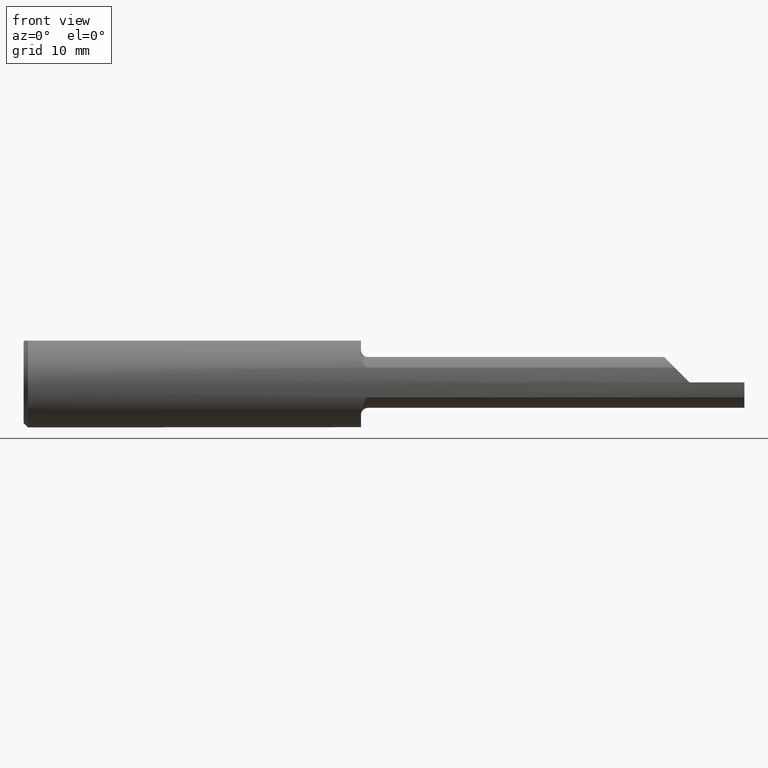
[diagram: clean part render]
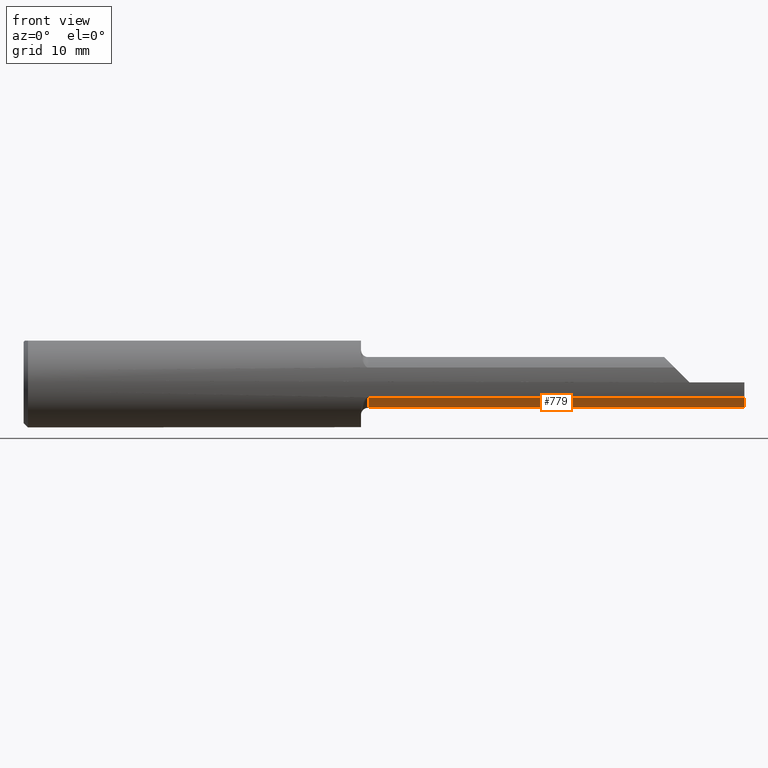
[diagram: same view with one face highlighted and labeled with its STEP entity id]
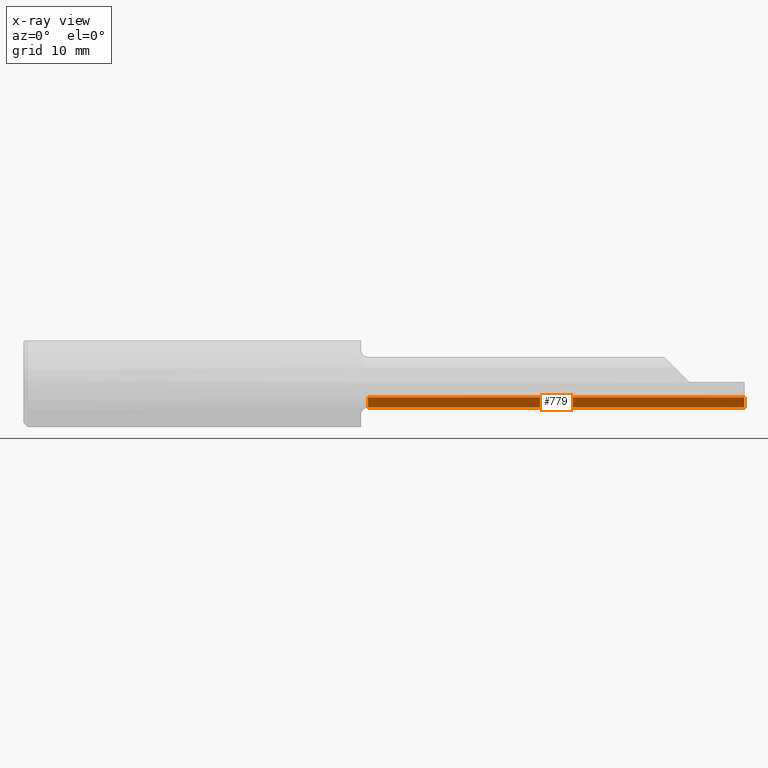
[diagram: x-ray of the same camera — body ghosted, the highlighted face saturated]
A machine part, front view. The second image highlights one B-rep face of the part: STEP entity #779.
The next image is the same camera in x-ray: the body ghosted, the highlighted face saturated — about 0% of this face is hidden behind the body in this view.
In plain terms, the highlighted cylindrical surface (edge-blend (fillet) strip) has radius 2.2352 mm, axis along (-1, -0, -0).
Its self-contained STEP definition (entity closure, byte-faithful):
#2 = CARTESIAN_POINT ( 'NONE',  ( 2.500000000000000000, -0.07609999999999991771, -0.08799999999999999489 ) ) ;
#38 = EDGE_CURVE ( 'NONE', #609, #834, #938, .T. ) ;
#63 = LINE ( 'NONE', #217, #769 ) ;
#74 = ORIENTED_EDGE ( 'NONE', *, *, #808, .T. ) ;
#132 = ORIENTED_EDGE ( 'NONE', *, *, #540, .F. ) ;
#136 = EDGE_LOOP ( 'NONE', ( #901, #132, #293, #367, #74 ) ) ;
#141 = EDGE_CURVE ( 'NONE', #965, #362, #933, .T. ) ;
#217 = CARTESIAN_POINT ( 'NONE',  ( 2.500000000000000000, -0.07609999999999991771, -0.08799999999999999489 ) ) ;
#259 = CARTESIAN_POINT ( 'NONE',  ( 1.195000000000000062, -0.07609999999999990383, 0.000000000000000000 ) ) ;
#291 = AXIS2_PLACEMENT_3D ( 'NONE', #322, #470, #934 ) ;
#293 = ORIENTED_EDGE ( 'NONE', *, *, #567, .F. ) ;
#301 = CARTESIAN_POINT ( 'NONE',  ( 1.195000000000000062, -0.1472695137976346991, -0.05175809410911754588 ) ) ;
#312 = VERTEX_POINT ( 'NONE', #2 ) ;
#322 = CARTESIAN_POINT ( 'NONE',  ( 1.170000000000000151, -0.07609999999999990383, 0.000000000000000000 ) ) ;
#331 = AXIS2_PLACEMENT_3D ( 'NONE', #259, #557, #862 ) ;
#362 = VERTEX_POINT ( 'NONE', #544 ) ;
#367 = ORIENTED_EDGE ( 'NONE', *, *, #38, .T. ) ;
#368 = CIRCLE ( 'NONE', #415, 0.08799999999999999489 ) ;
#371 = CARTESIAN_POINT ( 'NONE',  ( 2.435706988345931467, -0.07609999999999991771, -0.08799999999999999489 ) ) ;
#406 = DIRECTION ( 'NONE',  ( -1.000000000000000000, -0.000000000000000000, -0.000000000000000000 ) ) ;
#410 = CARTESIAN_POINT ( 'NONE',  ( 1.796000000000000263, -0.1472695137976346991, -0.05175809410911754588 ) ) ;
#413 = CARTESIAN_POINT ( 'NONE',  ( 1.170000000000000151, -0.07609999999999990383, -0.08799999999999999489 ) ) ;
#415 = AXIS2_PLACEMENT_3D ( 'NONE', #882, #814, #435 ) ;
#430 = CIRCLE ( 'NONE', #331, 0.08799999999999999489 ) ;
#431 = DIRECTION ( 'NONE',  ( -1.000000000000000000, -0.000000000000000000, -0.000000000000000000 ) ) ;
#435 = DIRECTION ( 'NONE',  ( 0.000000000000000000, 0.000000000000000000, 1.000000000000000000 ) ) ;
#463 = FACE_OUTER_BOUND ( 'NONE', #136, .T. ) ;
#470 = DIRECTION ( 'NONE',  ( -1.000000000000000000, -0.000000000000000000, -0.000000000000000000 ) ) ;
#540 = EDGE_CURVE ( 'NONE', #312, #965, #63, .T. ) ;
#544 = CARTESIAN_POINT ( 'NONE',  ( 1.195000000000000062, -0.07609999999999990383, -0.08799999999999999489 ) ) ;
#557 = DIRECTION ( 'NONE',  ( 1.000000000000000000, 0.000000000000000000, 0.000000000000000000 ) ) ;
#567 = EDGE_CURVE ( 'NONE', #609, #312, #368, .T. ) ;
#609 = VERTEX_POINT ( 'NONE', #675 ) ;
#654 = VECTOR ( 'NONE', #707, 39.37007874015748143 ) ;
#675 = CARTESIAN_POINT ( 'NONE',  ( 2.500000000000000000, -0.1472695137976346991, -0.05175809410911760139 ) ) ;
#707 = DIRECTION ( 'NONE',  ( -1.000000000000000000, -0.000000000000000000, -0.000000000000000000 ) ) ;
#769 = VECTOR ( 'NONE', #431, 39.37007874015748143 ) ;
#775 = CYLINDRICAL_SURFACE ( 'NONE', #291, 0.08799999999999999489 ) ;
#779 = ADVANCED_FACE ( 'NONE', ( #463 ), #775, .T. ) ;
#808 = EDGE_CURVE ( 'NONE', #834, #362, #430, .T. ) ;
#814 = DIRECTION ( 'NONE',  ( 1.000000000000000000, -0.000000000000000000, -0.000000000000000000 ) ) ;
#834 = VERTEX_POINT ( 'NONE', #301 ) ;
#862 = DIRECTION ( 'NONE',  ( 0.000000000000000000, 0.000000000000000000, -1.000000000000000000 ) ) ;
#882 = CARTESIAN_POINT ( 'NONE',  ( 2.500000000000000000, -0.07609999999999990383, 0.000000000000000000 ) ) ;
#901 = ORIENTED_EDGE ( 'NONE', *, *, #141, .F. ) ;
#906 = VECTOR ( 'NONE', #406, 39.37007874015748143 ) ;
#933 = LINE ( 'NONE', #413, #654 ) ;
#934 = DIRECTION ( 'NONE',  ( 0.000000000000000000, 0.000000000000000000, 1.000000000000000000 ) ) ;
#938 = LINE ( 'NONE', #410, #906 ) ;
#965 = VERTEX_POINT ( 'NONE', #371 ) ;